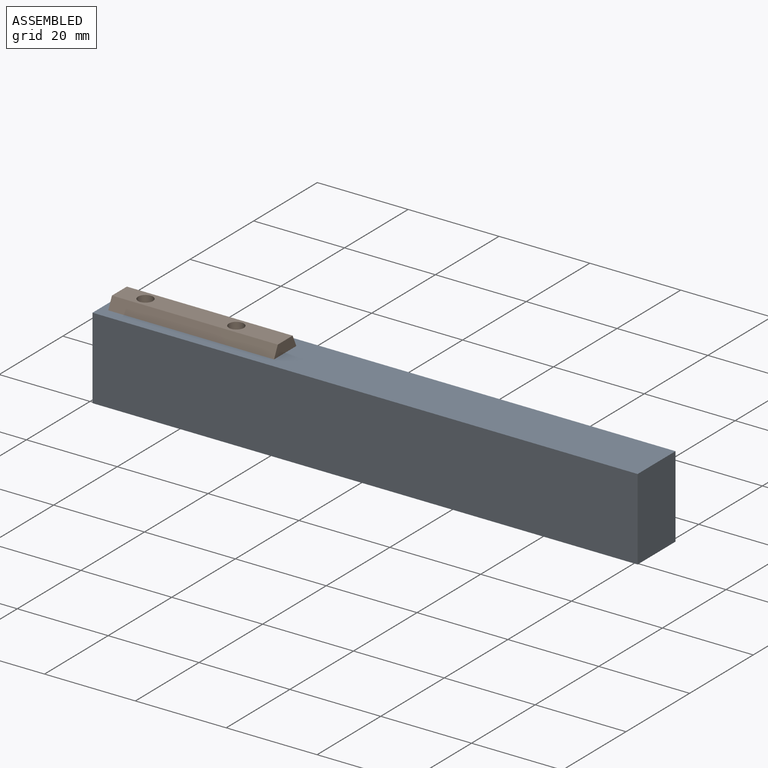
[diagram: assembled view]
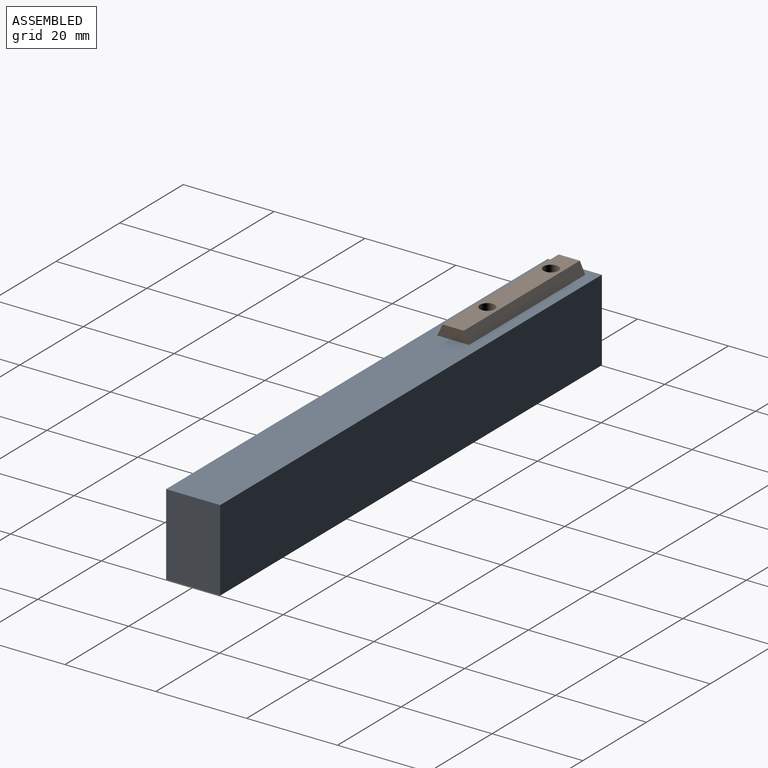
[diagram: assembled view, second angle]
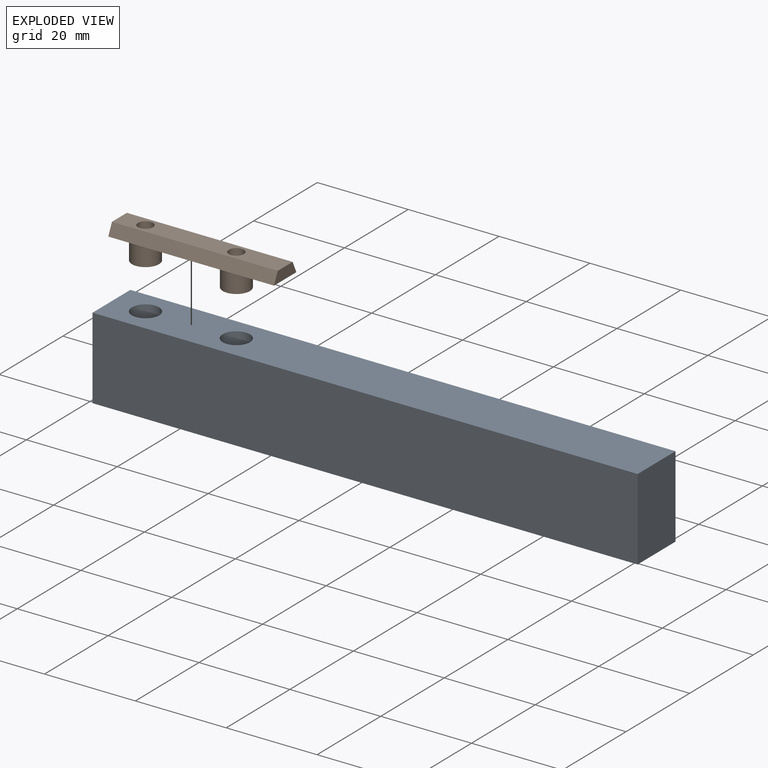
[diagram: exploded view]
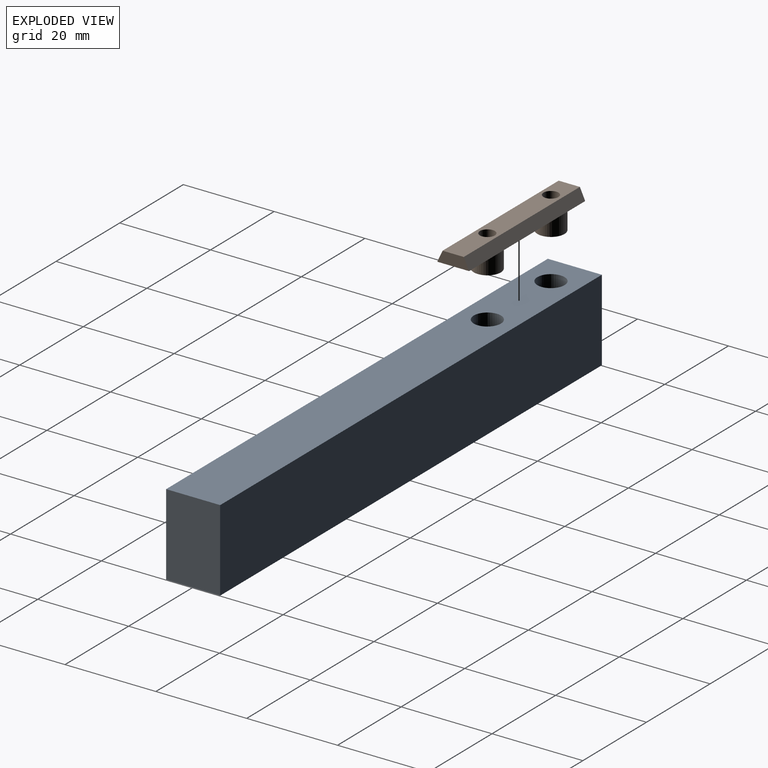
[diagram: exploded view, second angle]
ASSEMBLY  parts=2 mates=2
PART A: 8 faces, bbox 120x11.9x18 mm
  f0: plane 18x11.9mm, normal (1,0,0), area 214.2mm2, adj f1,f3,f4,f5
  f1: plane 120x18mm, normal (0,1,0), area 2160mm2, adj f0,f2,f4,f5
  f2: plane 18x11.9mm, normal (-1,0,0), area 214.2mm2, adj f1,f3,f4,f5
  f3: plane 120x18mm, normal (0,-1,0), area 2160mm2, adj f0,f2,f4,f5
  f4: plane 120x11.9mm, normal (0,0,1), area 1371.5mm2, adj f0,f1,f2,f3,f6,f7
  f5: plane 120x11.9mm, normal (0,0,-1), area 1371.5mm2, adj f0,f1,f2,f3,f6,f7
  f6: cylinder r=3mm len=18mm, axis (0,0,1), area 339.3mm2, adj f4,f5
  f7: cylinder r=3mm len=18mm, axis (0,0,1), area 339.3mm2, adj f4,f5
PART B: 12 faces, bbox 36.5x7x7 mm
  f0: plane 7x2.5mm, normal (1,0,0), area 14.6mm2, adj f1,f3,f10,f11
  f1: plane 36.5x4.67mm, normal (0,1,0), area 153.3mm2, adj f0,f2,f8,f9,f10,f11
  f2: plane 7x2.5mm, normal (-1,0,0), area 14.6mm2, adj f1,f3,f10,f11
  f3: plane 36.5x7mm, normal (0,-1,0), area 199.9mm2, adj f0,f2,f4,f6,f10,f11
  f4: cylinder r=2.98mm len=5.95mm, axis (0,1,0), area 84.1mm2, adj f3,f5
  f5: plane 5.95x5.95mm, normal (0,-1,0), area 19.3mm2, adj f4,f8
  f6: cylinder r=2.98mm len=5.95mm, axis (0,1,0), area 84.1mm2, adj f3,f7
  f7: plane 5.95x5.95mm, normal (0,-1,0), area 19.3mm2, adj f6,f9
  f8: cylinder r=1.65mm len=7mm, axis (0,-1,0), area 72.6mm2, adj f1,f5
  f9: cylinder r=1.65mm len=7mm, axis (0,-1,0), area 72.6mm2, adj f1,f7
  f10: plane 36.5x2.5mm, normal (0,0.42,-0.91), area 100.7mm2, adj f0,f1,f2,f3
  f11: plane 36.5x2.5mm, normal (0,0.42,0.91), area 100.7mm2, adj f0,f1,f2,f3
PLACE A t=(3.07,2.36,-8.11)mm fixed
PLACE B rot(axis=(1,0,0),90deg) t=(-36.93,2.36,12.39)mm
MATE fastened B.f6 <-> A.f6  axis (0,0,1) through (-29.43,2.36,9.89)mm
MATE pin_slot B.f4 <-> A.f7  axis (0,0,1) through (-49.43,2.36,9.89)mm
